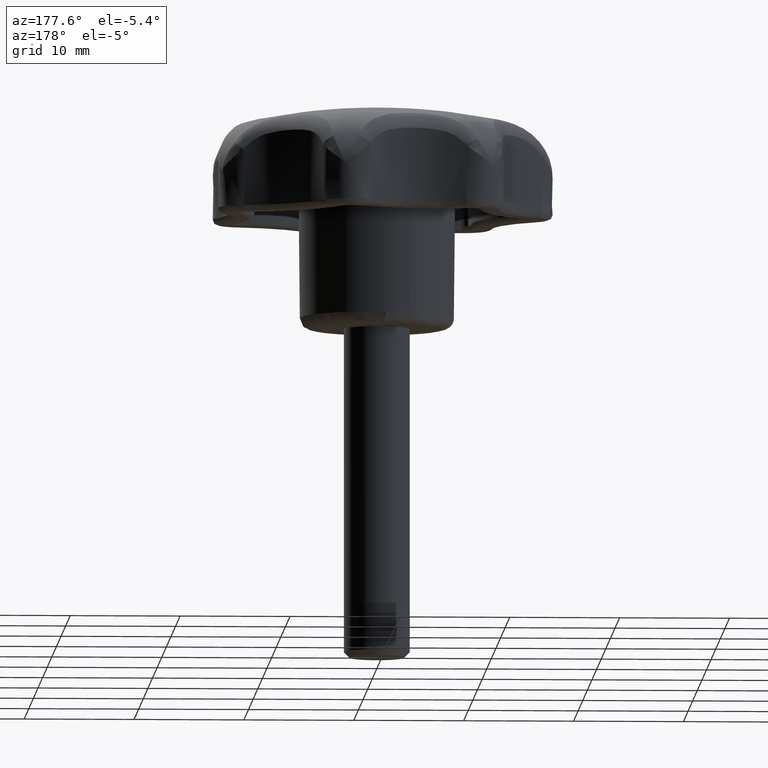
[diagram: clean part render]
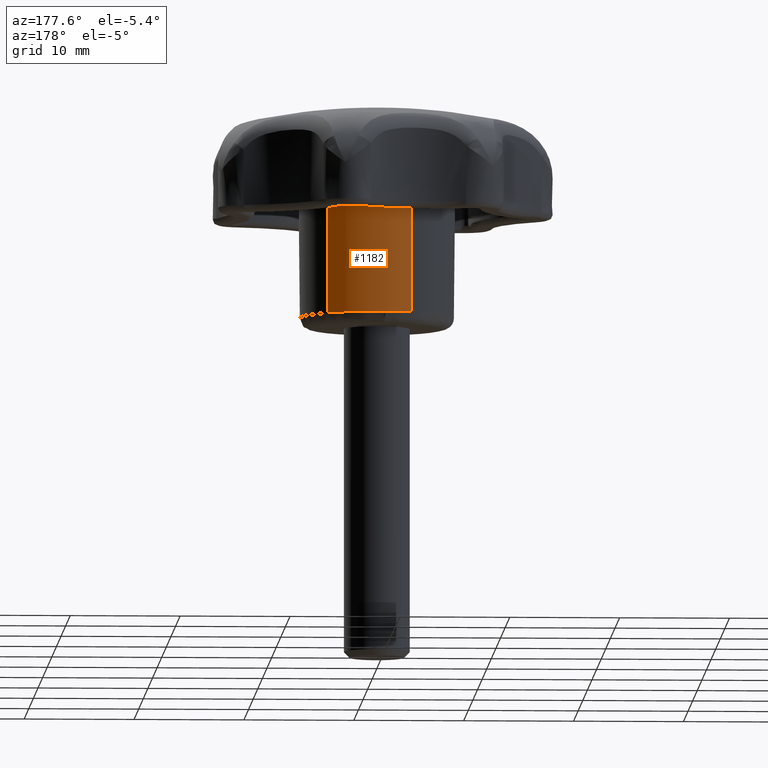
[diagram: same view with one face highlighted and labeled with its STEP entity id]
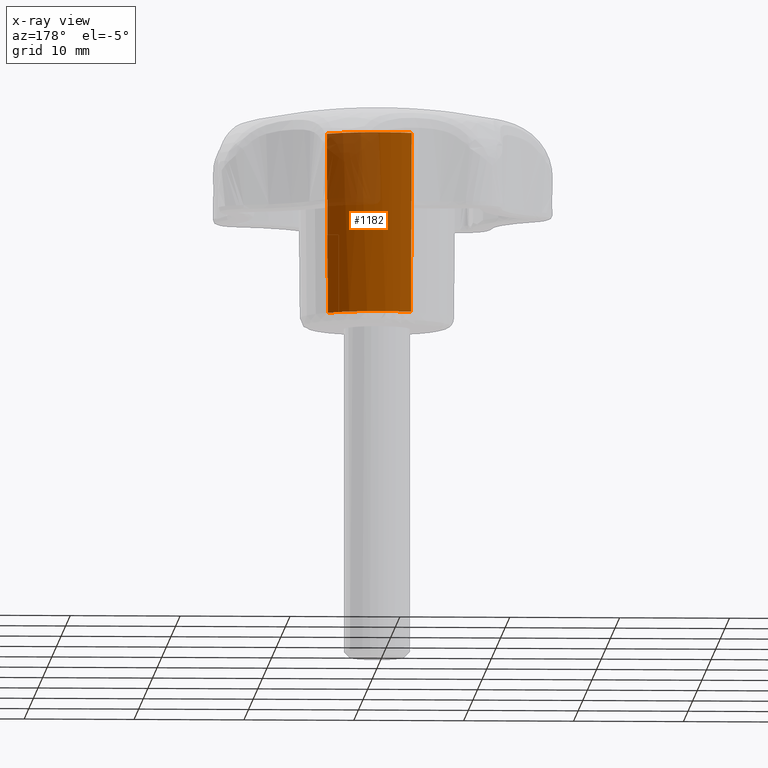
[diagram: x-ray of the same camera — body ghosted, the highlighted face saturated]
A machine part, auxiliary view. The second image highlights one B-rep face of the part: STEP entity #1182.
The next image is the same camera in x-ray: the body ghosted, the highlighted face saturated — about 25% of this face is hidden behind the body in this view.
In plain terms, the highlighted face is a freeform B-spline surface patch.
Its self-contained STEP definition (entity closure, byte-faithful):
#969=CARTESIAN_POINT('',(-2.903645092692714,6.559237122461827,17.319651612084218));
#970=VERTEX_POINT('',#969);
#985=CARTESIAN_POINT('',(-2.837544167652939,6.409917399598444,0.990000608527300));
#986=VERTEX_POINT('',#985);
#987=CARTESIAN_POINT('',(-2.837544167652939,6.409917399598444,0.990000608527300));
#988=CARTESIAN_POINT('',(-2.903645092692714,6.559237122461827,17.319651612084218));
#989=QUASI_UNIFORM_CURVE('',1,(#987,#988),.UNSPECIFIED.,.F.,.U.);
#990=EDGE_CURVE('',#986,#970,#989,.T.);
#1050=CARTESIAN_POINT('',(4.670501578464534,5.227342822285378,0.990000751596052));
#1051=VERTEX_POINT('',#1050);
#1064=CARTESIAN_POINT('',(4.779301596235741,5.349114615891891,17.319651373754962));
#1065=VERTEX_POINT('',#1064);
#1066=CARTESIAN_POINT('',(4.670501578464534,5.227342822285378,0.990000751596052));
#1067=CARTESIAN_POINT('',(4.779301596235741,5.349114615891891,17.319651373754962));
#1068=QUASI_UNIFORM_CURVE('',1,(#1066,#1067),.UNSPECIFIED.,.F.,.U.);
#1069=EDGE_CURVE('',#1051,#1065,#1068,.T.);
#1122=CARTESIAN_POINT('',(4.667781562475971,5.224298550591673,0.581759733794244));
#1123=CARTESIAN_POINT('',(1.297205352250471,8.235825042933673,0.581759733794244));
#1124=CARTESIAN_POINT('',(-2.835891660430175,6.406184398767138,0.581759733794244));
#1125=CARTESIAN_POINT('',(4.782089495472544,5.352234864809075,17.738098943506671));
#1126=CARTESIAN_POINT('',(1.328972233477275,8.437509745737071,17.738098943506674));
#1127=CARTESIAN_POINT('',(-2.905338979154756,6.563063568714743,17.738098943506674));
#1135=(BOUNDED_SURFACE()B_SPLINE_SURFACE(2,1,((#1122,#1125),(#1123,#1126),(#1124,#1127)),.UNSPECIFIED.,.F.,.F.,.U.)B_SPLINE_SURFACE_WITH_KNOTS((3,3),(2,2),(0.0,8.448505927732807),(0.0,17.157197005418968),.UNSPECIFIED.)GEOMETRIC_REPRESENTATION_ITEM()RATIONAL_B_SPLINE_SURFACE(((1.0,1.0),(0.789116882454314,0.789116882454314),(0.881905454174416,0.881905454174416)))REPRESENTATION_ITEM('')SURFACE());
#1136=CARTESIAN_POINT('',(0.000000724048703,7.173196524580914,17.319651645708799));
#1137=VERTEX_POINT('',#1136);
#1138=CARTESIAN_POINT('',(-2.903645092692714,6.559237122461827,17.319651612084218));
#1139=CARTESIAN_POINT('',(-2.462310517980145,6.754686500667805,17.319651617194950));
#1140=CARTESIAN_POINT('',(-1.510246076796110,7.065625241250022,17.319651628219962));
#1141=CARTESIAN_POINT('',(-0.513813879542908,7.173291165912390,17.319651639758760));
#1142=CARTESIAN_POINT('',(0.000000724048703,7.173196524580914,17.319651645708799));
#1143=B_SPLINE_CURVE_WITH_KNOTS('',3,(#1138,#1139,#1140,#1141,#1142),.UNSPECIFIED.,.F.,.U.,(4,1,4),(2.416863E-009,1.448013746770127,2.989437196423253),.UNSPECIFIED.);
#1144=EDGE_CURVE('',#970,#1137,#1143,.T.);
#1145=ORIENTED_EDGE('',*,*,#1144,.T.);
#1146=CARTESIAN_POINT('',(0.000000724048703,7.173196524580914,17.319651645708799));
#1147=CARTESIAN_POINT('',(0.395028234613340,7.173228549787168,17.319651623230790));
#1148=CARTESIAN_POINT('',(1.076096800820130,7.116783415054286,17.319651584476311));
#1149=CARTESIAN_POINT('',(2.113652596867126,6.879302158989845,17.319651525436889));
#1150=CARTESIAN_POINT('',(3.007318830191489,6.538220684944062,17.319651474585111));
#1151=CARTESIAN_POINT('',(3.939261261287734,6.024020371721465,17.319651421555228));
#1152=CARTESIAN_POINT('',(4.484747512164110,5.612334347906301,17.319651390515890));
#1153=CARTESIAN_POINT('',(4.779301596235741,5.349114615891891,17.319651373754962));
#1154=B_SPLINE_CURVE_WITH_KNOTS('',3,(#1146,#1147,#1148,#1149,#1150,#1151,#1152,#1153),.UNSPECIFIED.,.F.,.U.,(4,1,1,1,1,4),(6.752506E-009,1.185078242037832,2.043242659871224,3.187448322154941,4.045612739994931,5.230690975280326),.UNSPECIFIED.);
#1155=EDGE_CURVE('',#1137,#1065,#1154,.T.);
#1156=ORIENTED_EDGE('',*,*,#1155,.T.);
#1157=ORIENTED_EDGE('',*,*,#1069,.F.);
#1158=CARTESIAN_POINT('',(-0.488823120539927,6.992835621416621,0.990000999938574));
#1159=VERTEX_POINT('',#1158);
#1160=CARTESIAN_POINT('',(-0.488823120539927,6.992835621416621,0.990000999938574));
#1161=CARTESIAN_POINT('',(0.078631450427460,7.032642598626783,0.990000971818848));
#1162=CARTESIAN_POINT('',(0.988390097049469,6.985130481315546,0.990000927119764));
#1163=CARTESIAN_POINT('',(2.080616250425052,6.711480118296652,0.990000874201200));
#1164=CARTESIAN_POINT('',(2.885648090182324,6.404750414728923,0.990000835558819));
#1165=CARTESIAN_POINT('',(3.742952710495366,5.962374881840137,0.990000794805677));
#1166=CARTESIAN_POINT('',(4.344234454871145,5.518916478791653,0.990000766681438));
#1167=CARTESIAN_POINT('',(4.670501578464534,5.227342822285378,0.990000751596052));
#1168=B_SPLINE_CURVE_WITH_KNOTS('',3,(#1160,#1161,#1162,#1163,#1164,#1165,#1166,#1167),.UNSPECIFIED.,.F.,.U.,(4,1,1,1,1,4),(8.645459E-009,1.706506037852845,2.712910570789049,3.369248606561552,4.288142162377346,5.600838273692876),.UNSPECIFIED.);
#1169=EDGE_CURVE('',#1159,#1051,#1168,.T.);
#1170=ORIENTED_EDGE('',*,*,#1169,.F.);
#1171=CARTESIAN_POINT('',(-2.837544167652939,6.409917399598444,0.990000608527300));
#1172=CARTESIAN_POINT('',(-2.582714034018394,6.522728957832165,0.990000651562007));
#1173=CARTESIAN_POINT('',(-1.821794186810330,6.806657174702560,0.990000779457080));
#1174=CARTESIAN_POINT('',(-1.019584274409156,6.955857591661373,0.990000912572925));
#1175=CARTESIAN_POINT('',(-0.488823120539927,6.992835621416621,0.990000999938574));
#1176=B_SPLINE_CURVE_WITH_KNOTS('',3,(#1171,#1172,#1173,#1174,#1175),.UNSPECIFIED.,.F.,.U.,(4,1,4),(6.665042E-010,0.836058135558445,2.432169088845639),.UNSPECIFIED.);
#1177=EDGE_CURVE('',#986,#1159,#1176,.T.);
#1178=ORIENTED_EDGE('',*,*,#1177,.F.);
#1179=ORIENTED_EDGE('',*,*,#990,.T.);
#1180=EDGE_LOOP('',(#1145,#1156,#1157,#1170,#1178,#1179));
#1181=FACE_OUTER_BOUND('',#1180,.T.);
#1182=ADVANCED_FACE('',(#1181),#1135,.T.);